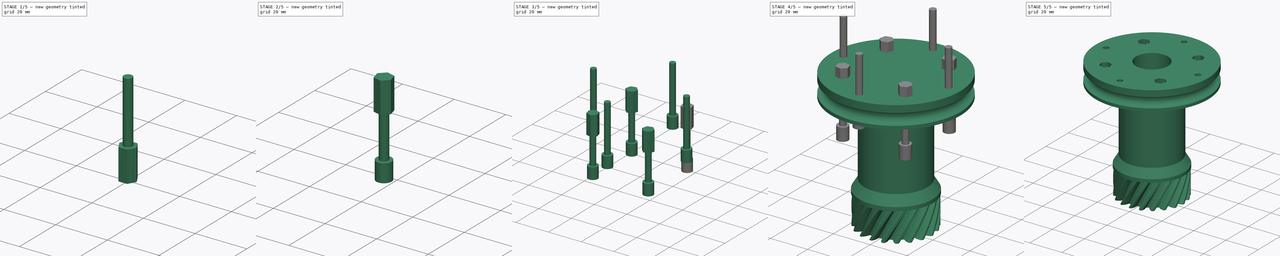
[diagram: build sequence overview — one tinted view per stage of 5, left to right]
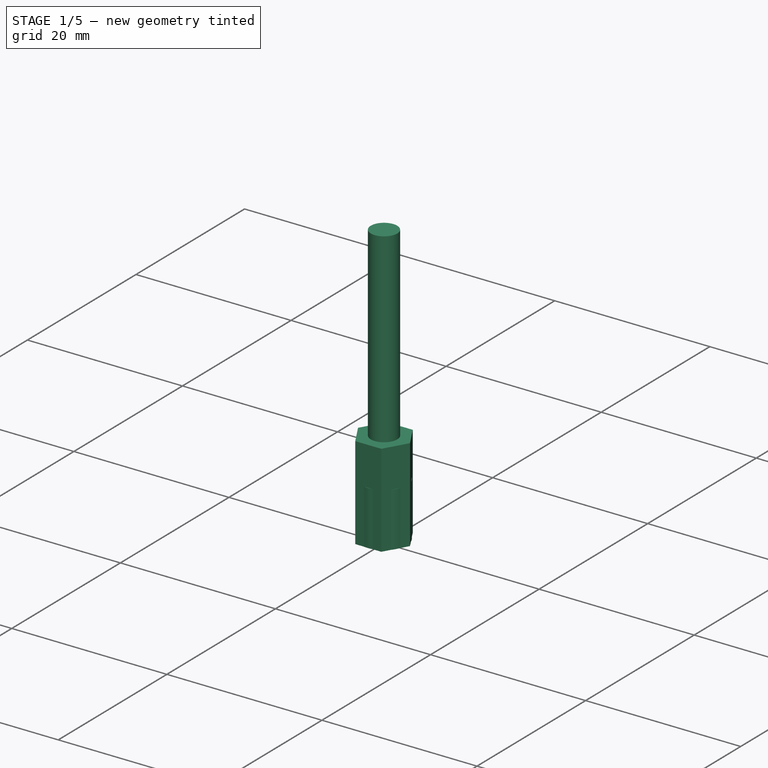
[diagram: stage 1 of 5 — iso view after this stage's code; geometry added in this stage tinted green]
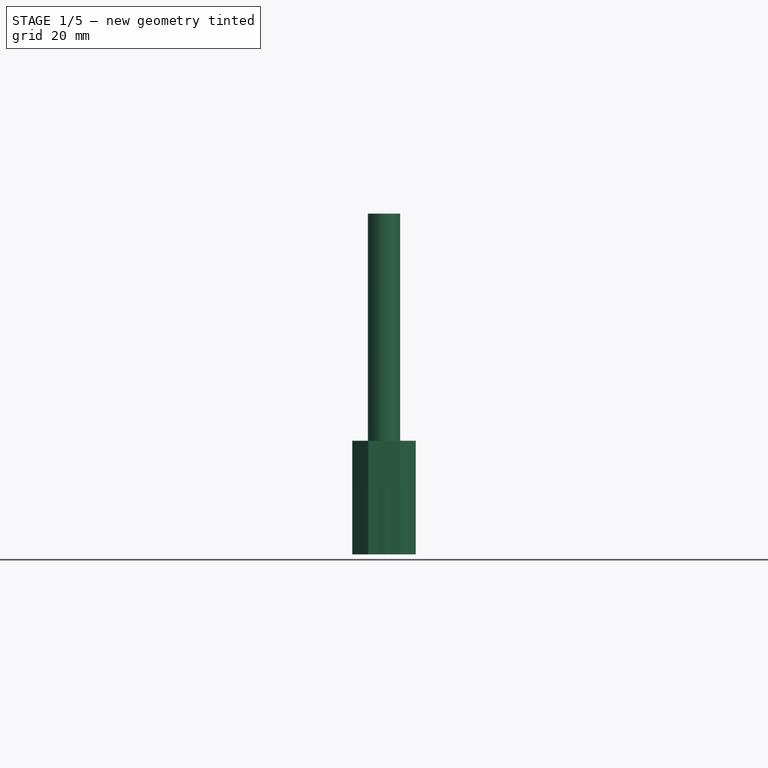
[diagram: stage 1 of 5 — front view after this stage's code; geometry added in this stage tinted green]
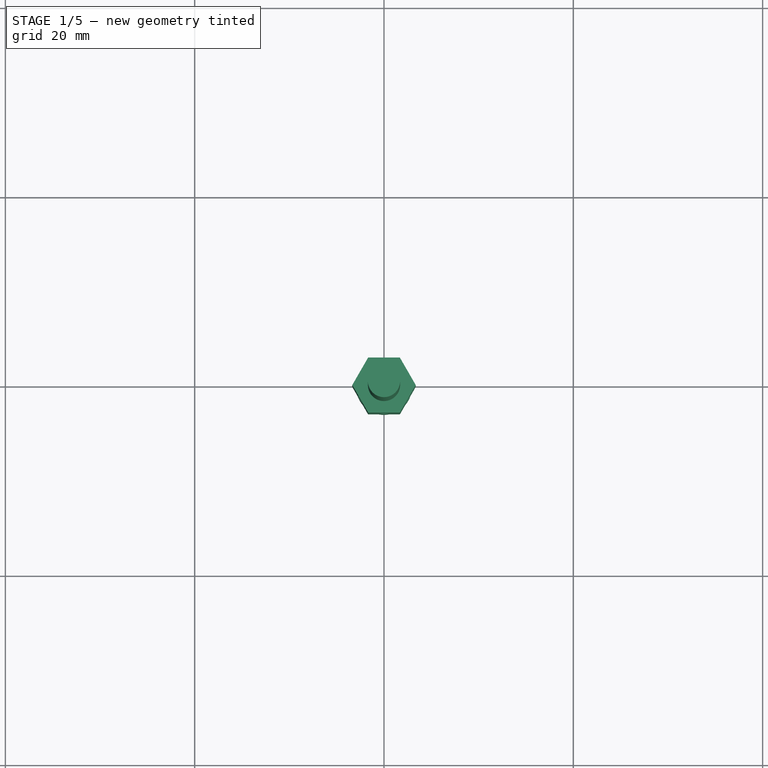
[diagram: stage 1 of 5 — top view after this stage's code; geometry added in this stage tinted green]
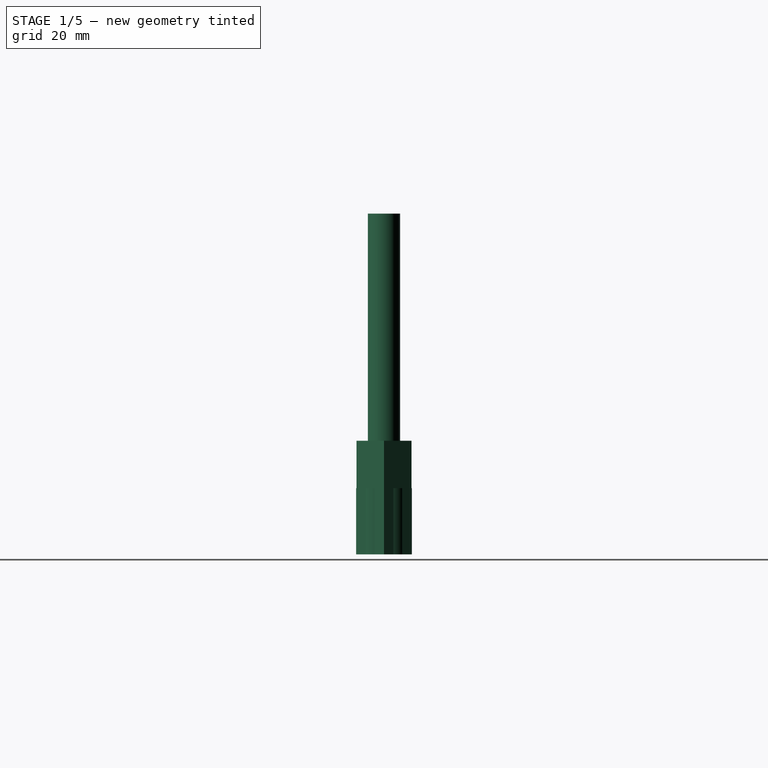
[diagram: stage 1 of 5 — right view after this stage's code; geometry added in this stage tinted green]
FCSTD DOCUMENT  (FreeCAD 0.16R6460 (Git))
Label: Art4TransmissionColumn
License: All rights reserved
LicenseURL: http://en.wikipedia.org/wiki/All_rights_reserved
objects: Part::FeaturePython×5, Part::MultiFuse×4, Part::Cylinder×3, Part::Cut×2, Part::Prism×1, Sketcher::SketchObject×1, PartDesign::Revolution×1, Part::Part2DObjectPython×1, Part::Helix×1, Part::Sweep×1, App::DocumentObjectGroup×1
note: 21 computed .brp shape members not serialized (recipe doc carries the construction recipe); baked Part::Feature solids carry a one-line shape summary decoded from their .brp

FEATURE [Part::Cylinder] Cylinder  label="M3BoltHead"
  Angle = 360
  Height = 7
  Radius = 2.95
FEATURE [Part::Cylinder] Cylinder001  label="M3BoltBody"
  Angle = 360
  Height = 30
  Placement = pos=(0,0,6) rot=(0,0,1;0rad)
  Radius = 1.7
FEATURE [Part::Prism] Prism  label="M3Nut"
  Circumradius = 3.35
  Height = 12
  Polygon = 6
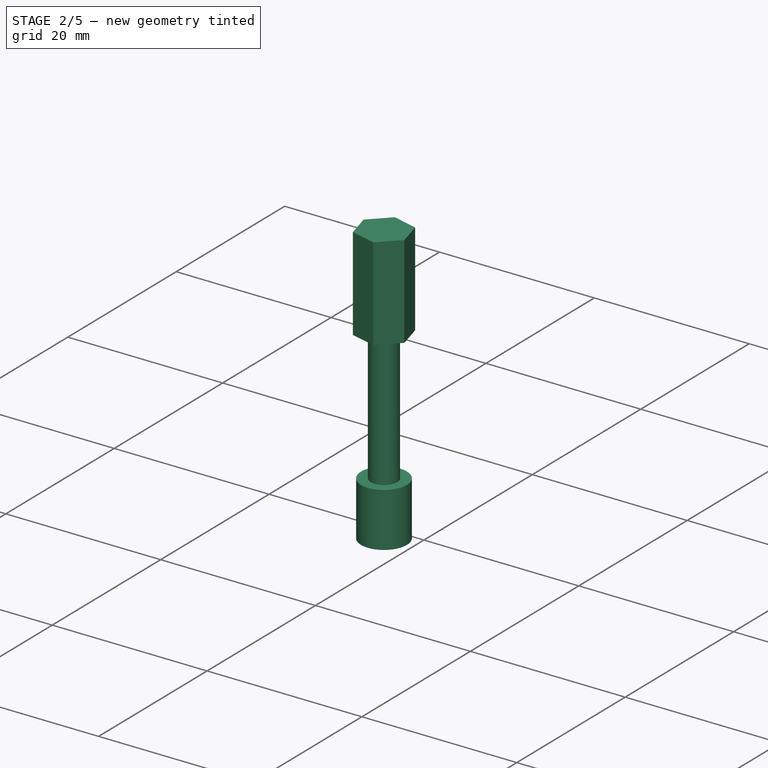
[diagram: stage 2 of 5 — iso view after this stage's code; geometry added in this stage tinted green]
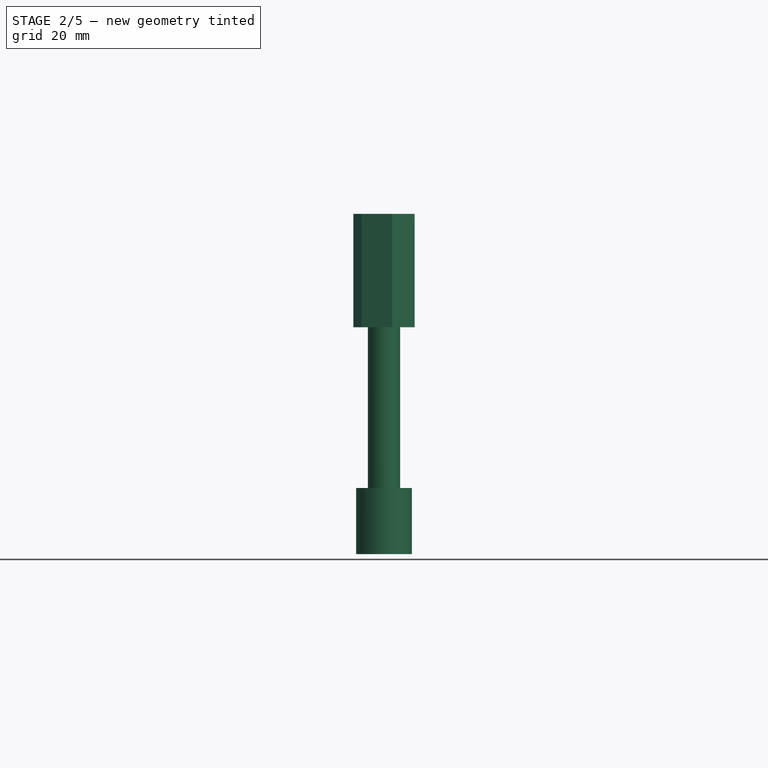
[diagram: stage 2 of 5 — front view after this stage's code; geometry added in this stage tinted green]
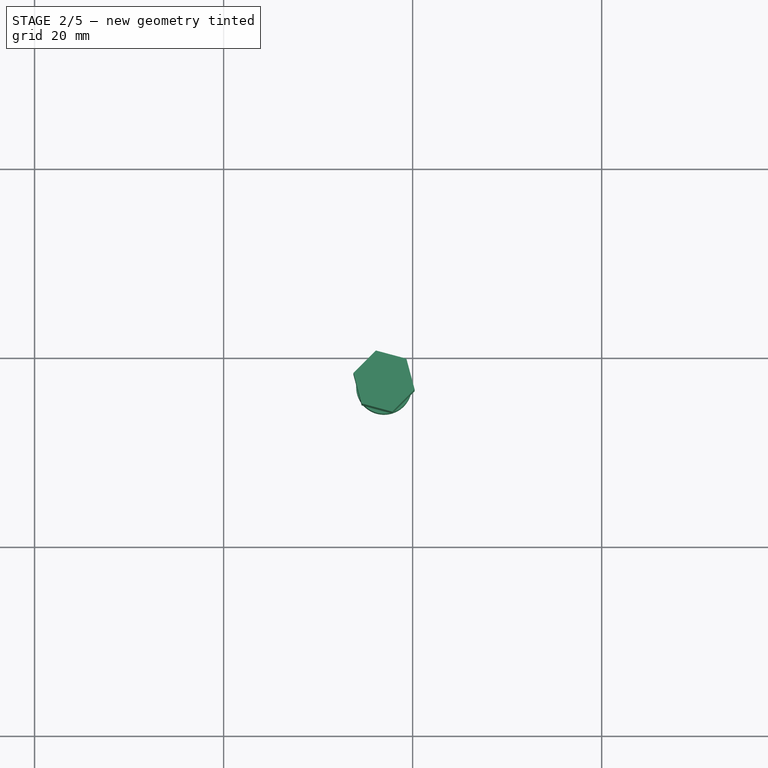
[diagram: stage 2 of 5 — top view after this stage's code; geometry added in this stage tinted green]
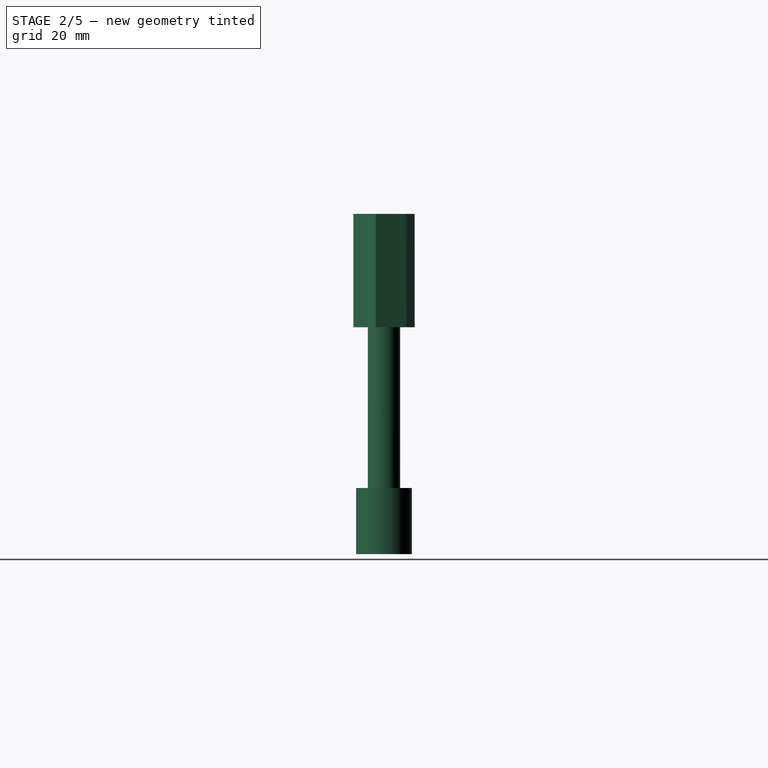
[diagram: stage 2 of 5 — right view after this stage's code; geometry added in this stage tinted green]
FEATURE [Part::MultiFuse] Fusion  label="M3Bolt"
  Shapes = -> [Cylinder001,Cylinder]
FEATURE [Part::FeaturePython] Clone361  label="Clone of M3Bolt121"  # Draft clone (typed FeaturePython)
  Objects = -> [Fusion]
  Placement = pos=(16.9706,16.9706,44) rot=(0,0,1;0.785398rad)
  Scale = (1,1,1)
FEATURE [Part::FeaturePython] Clone362  label="Clone of M3Nut019"  # Draft clone (typed FeaturePython)
  Objects = -> [Prism]
  Placement = pos=(16.9706,16.9706,68) rot=(0,0,1;0.785398rad)
  Scale = (1,1,1)
FEATURE [Part::MultiFuse] Fusion131
  Shapes = -> [Clone361,Clone362]
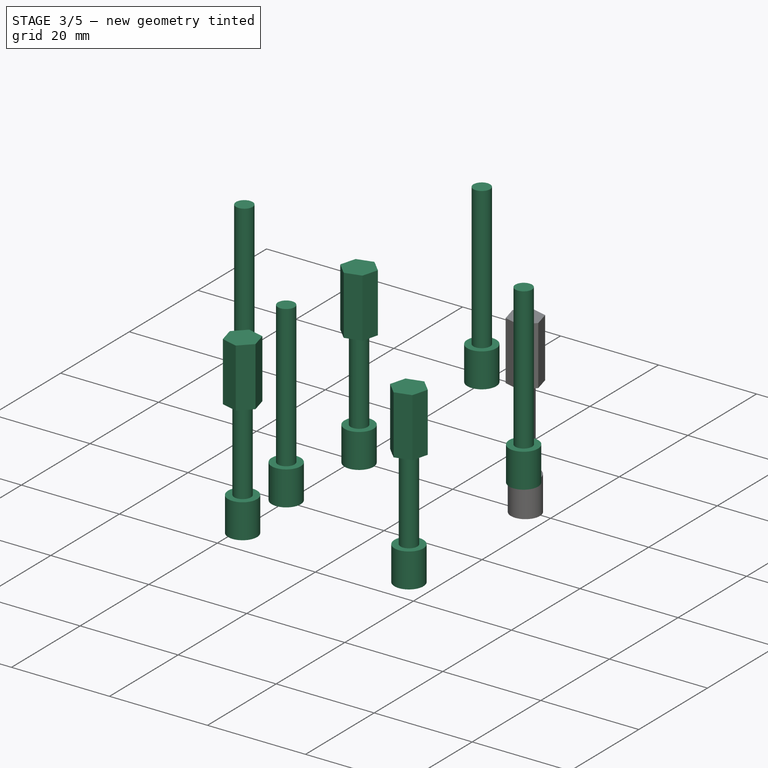
[diagram: stage 3 of 5 — iso view after this stage's code; geometry added in this stage tinted green]
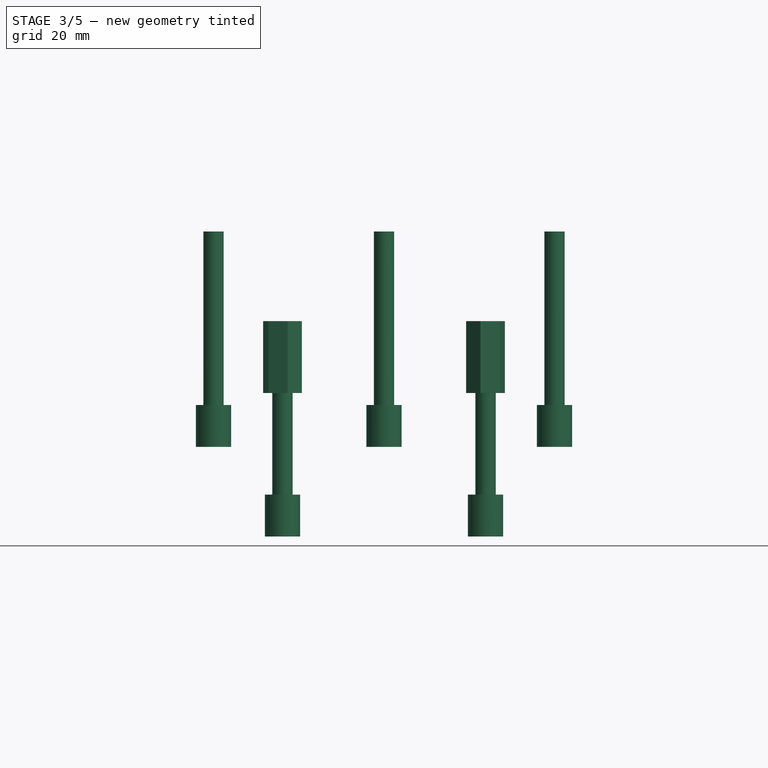
[diagram: stage 3 of 5 — front view after this stage's code; geometry added in this stage tinted green]
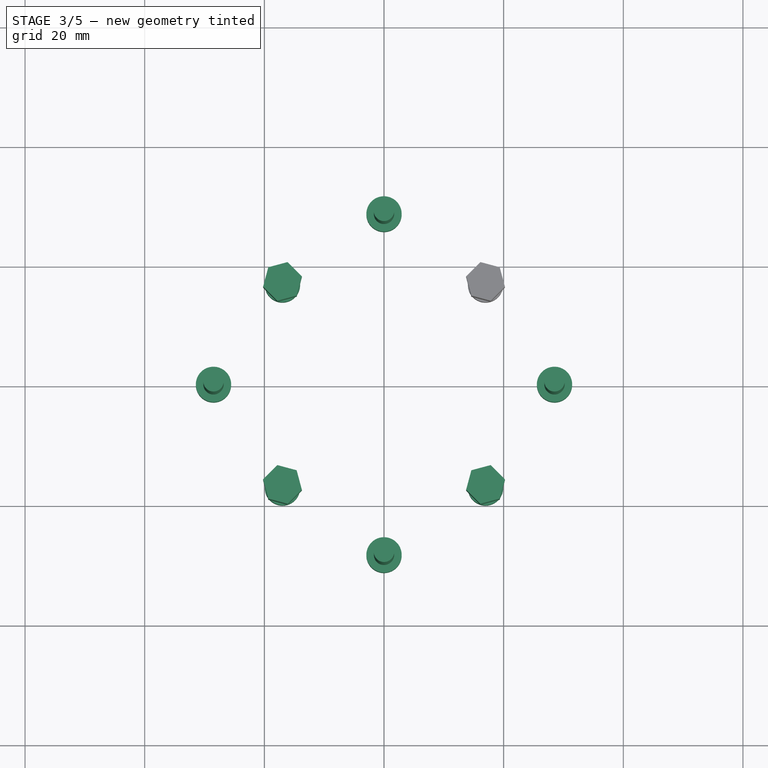
[diagram: stage 3 of 5 — top view after this stage's code; geometry added in this stage tinted green]
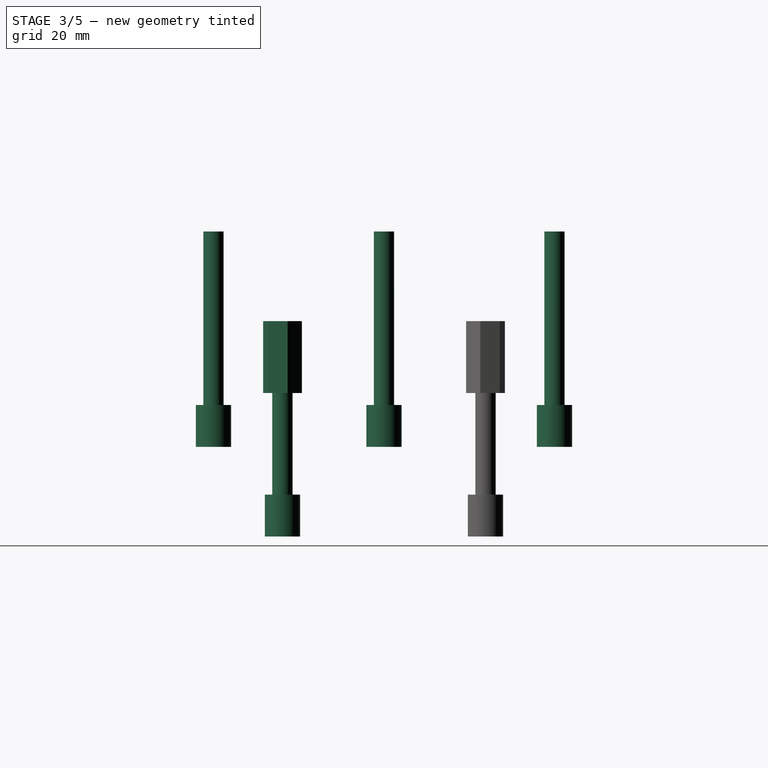
[diagram: stage 3 of 5 — right view after this stage's code; geometry added in this stage tinted green]
FEATURE [Part::FeaturePython] Clone251  label="Clone of M3Bolt084"  # Draft clone (typed FeaturePython)
  Objects = -> [Fusion]
  Placement = pos=(28.5,0,59) rot=(0,0,1;0rad)
  Scale = (1,1,1)
FEATURE [Part::FeaturePython] Array010  # Draft array (typed FeaturePython)
  Angle = 360
  ArrayType = 1
  Axis = (0,0,1)
  Base = -> Clone251
  Center = (0,0,0)
  Fuse = false
  IntervalAxis = (0,0,0)
  IntervalX = (1,0,0)
  IntervalY = (0,1,0)
  IntervalZ = (0,0,0)
  NumberPolar = 4
  NumberX = 2
  NumberY = 2
  NumberZ = 1
FEATURE [Part::FeaturePython] Array019  # Draft array (typed FeaturePython)
  Angle = 360
  ArrayType = 1
  Axis = (0,0,1)
  Base = -> Fusion131
  Center = (0,0,0)
  Fuse = false
  IntervalAxis = (0,0,0)
  IntervalX = (1,0,0)
  IntervalY = (0,1,0)
  IntervalZ = (0,0,0)
  NumberPolar = 4
  NumberX = 2
  NumberY = 2
  NumberZ = 1
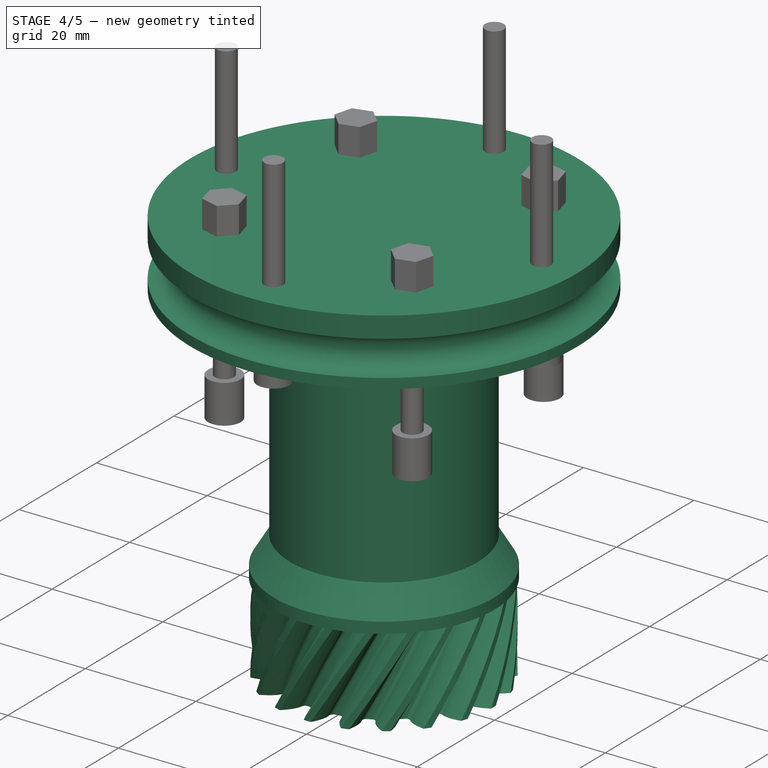
[diagram: stage 4 of 5 — iso view after this stage's code; geometry added in this stage tinted green]
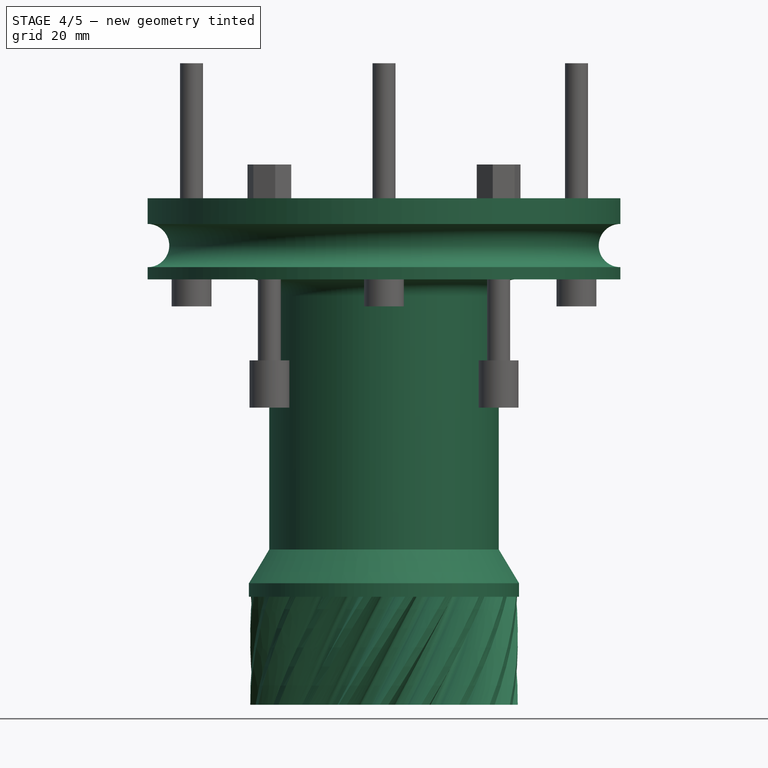
[diagram: stage 4 of 5 — front view after this stage's code; geometry added in this stage tinted green]
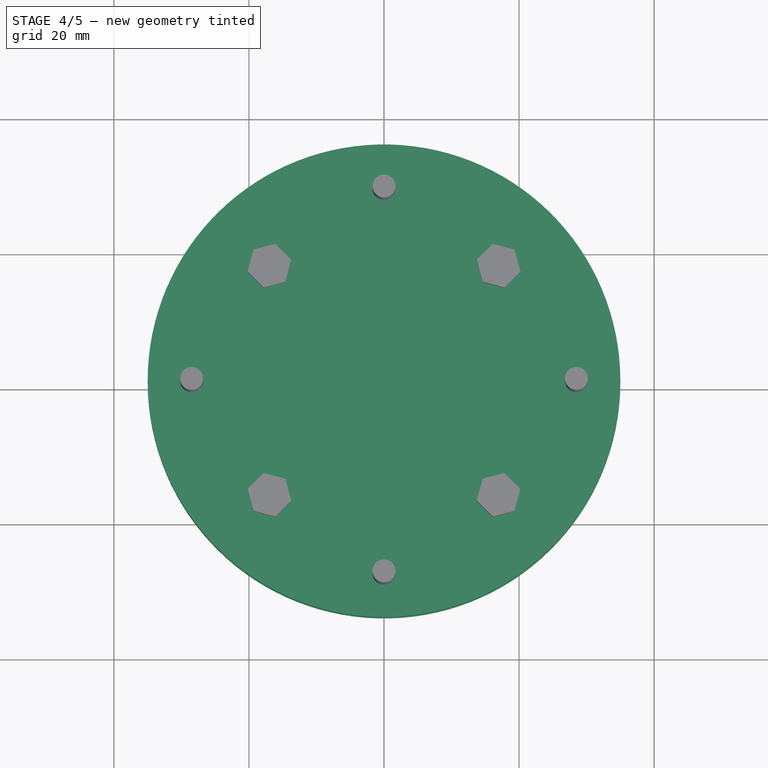
[diagram: stage 4 of 5 — top view after this stage's code; geometry added in this stage tinted green]
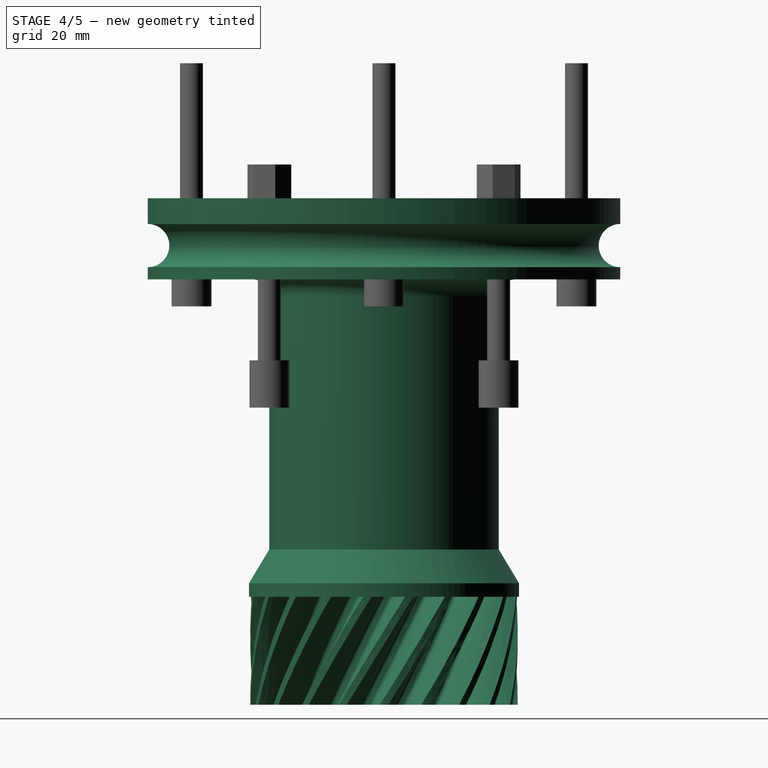
[diagram: stage 4 of 5 — right view after this stage's code; geometry added in this stage tinted green]
FEATURE [Sketcher::SketchObject] Sketch046
  Placement = pos=(0,0,16) rot=(1,0,0;1.5708rad)
  sketch-geometry (12):
    g0: LineSegment StartX=17 StartY=44.5 StartZ=0 EndX=17 EndY=7 EndZ=0
    g1: LineSegment StartX=17 StartY=7 StartZ=0 EndX=20 EndY=2 EndZ=0
    g2: LineSegment StartX=20 StartY=2 StartZ=0 EndX=20 EndY=0 EndZ=0
    g3: LineSegment StartX=20 StartY=0 StartZ=0 EndX=0 EndY=0 EndZ=0
    g4: LineSegment StartX=0 StartY=0 StartZ=0 EndX=0 EndY=59 EndZ=0
    g5: LineSegment StartX=0 StartY=59 StartZ=0 EndX=35 EndY=59 EndZ=0
    g6: LineSegment StartX=35 StartY=59 StartZ=0 EndX=35 EndY=55.2 EndZ=0
    g7: ArcOfCircle CenterX=19.5 CenterY=44.5 CenterZ=0 NormalX=0 NormalY=0 NormalZ=1 Radius=2.5 StartAngle=1.5708 EndAngle=3.14159
    g8: ArcOfCircle CenterX=35 CenterY=52 CenterZ=0 NormalX=0 NormalY=0 NormalZ=1 Radius=3.2 StartAngle=1.5708 EndAngle=4.71239
    g9: LineSegment StartX=19.5 StartY=47 StartZ=0 EndX=35 EndY=47 EndZ=0
    g10: LineSegment StartX=35 StartY=47 StartZ=0 EndX=35 EndY=48.8 EndZ=0
    g11: LineSegment [constr] StartX=35 StartY=55.2 StartZ=0 EndX=35 EndY=48.8 EndZ=0
  constraints (35):
    c: Vertical(g0)
    c: Coincident(g0,g1)
    c: Coincident(g1,g2)
    c: PointOnObject(g2,g-1)
    c: Coincident(g2,g3)
    c: Coincident(g3,g-1)
    c: Coincident(g3,g4)
    c: PointOnObject(g4,g-2)
    c: Coincident(g4,g5)
    c: Horizontal(g5)
    c: Coincident(g5,g6)
    c: Vertical(g6)
    c: Coincident(g7,g0)
    c: Coincident(g8,g6)
    c: Tangent(g7,g9) = 1.5708
    c: Coincident(g9,g10)
    c: Coincident(g10,g8)
    c: Vertical(g10)
    c: Horizontal(g9)
    c: DistanceY(g4) = 59
    c: Coincident(g11,g6)
    c: Coincident(g11,g8)
    c: Vertical(g11)
    c: PointOnObject(g8,g11)
    c: Radius(g8) = 3.2
    c: DistanceY(g9,g8) = 5
    c: DistanceY(g9,g5) = 12
    c: DistanceX(g3) = -20
    c: Vertical(g2)
    c: DistanceY(g2) = -2
    c: DistanceY(g1) = -5
    c: DistanceY(g0) = -37.5
    c: Tangent(g0,g7)
    c: DistanceX(g5) = 35
    c: DistanceX(g-1,g0) = 17
FEATURE [PartDesign::Revolution] Revolution008
  Angle = 360
  Axis = (0,0,1)
  Base = (0,0,16)
  Placement = pos=(0,0,16) rot=(1,0,0;1.5708rad)
  ReferenceAxis = -> Sketch046 [V_Axis]
  Reversed = true
  Sketch = -> Sketch046
FEATURE [Part::Part2DObjectPython] InvoluteGear005  # Draft 2D object (typed FeaturePython)
  ExternalGear = true
  HighPrecision = true
  Modules = 1.8
  NumberOfTeeth = 20
  PressureAngle = 20
FEATURE [Part::Cylinder] Cylinder1026  label="Cylinder1070"
  Angle = 360
  Height = 75
  Radius = 10
FEATURE [Part::MultiFuse] Fusion132
  Shapes = -> [Array010,Array019]
FEATURE [Part::Helix] Helix005  label="Art4TransmissionColumnHelix"
  Angle = 0
  Height = 17
  LocalCoord = 0
  Pitch = 200
  Radius = 1
  Style = 1
FEATURE [Part::Sweep] Sweep005
  Frenet = true
  Sections = -> [InvoluteGear005]
  Solid = true
  Spine = -> Helix005 [Edge1]
  Transition = 1
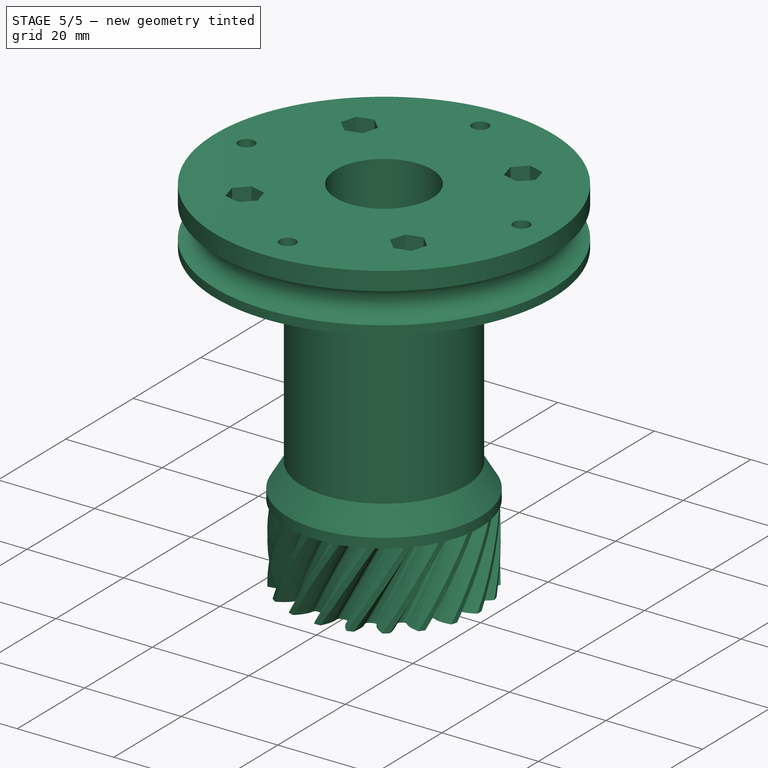
[diagram: stage 5 of 5 — iso view after this stage's code; geometry added in this stage tinted green]
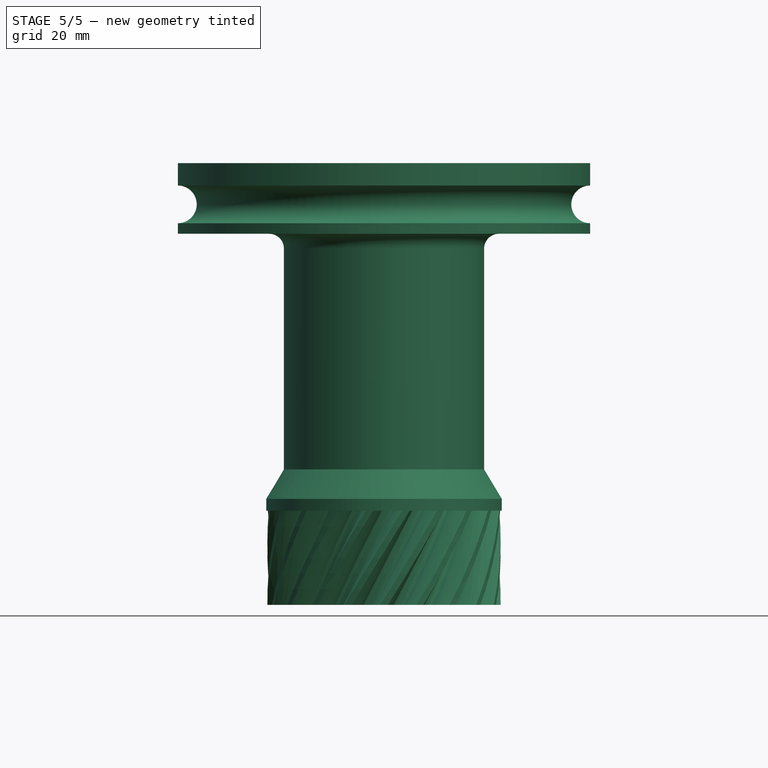
[diagram: stage 5 of 5 — front view after this stage's code; geometry added in this stage tinted green]
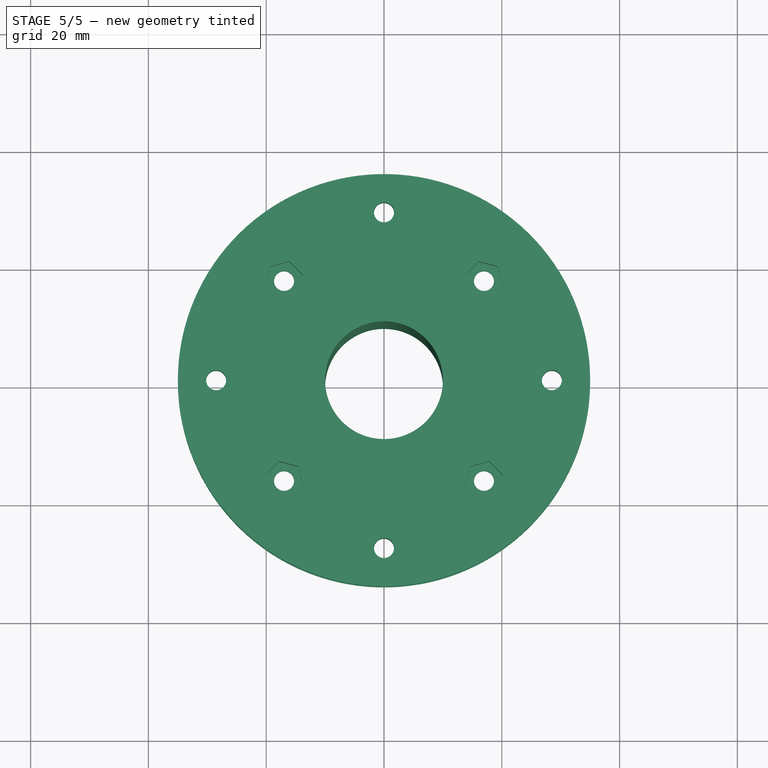
[diagram: stage 5 of 5 — top view after this stage's code; geometry added in this stage tinted green]
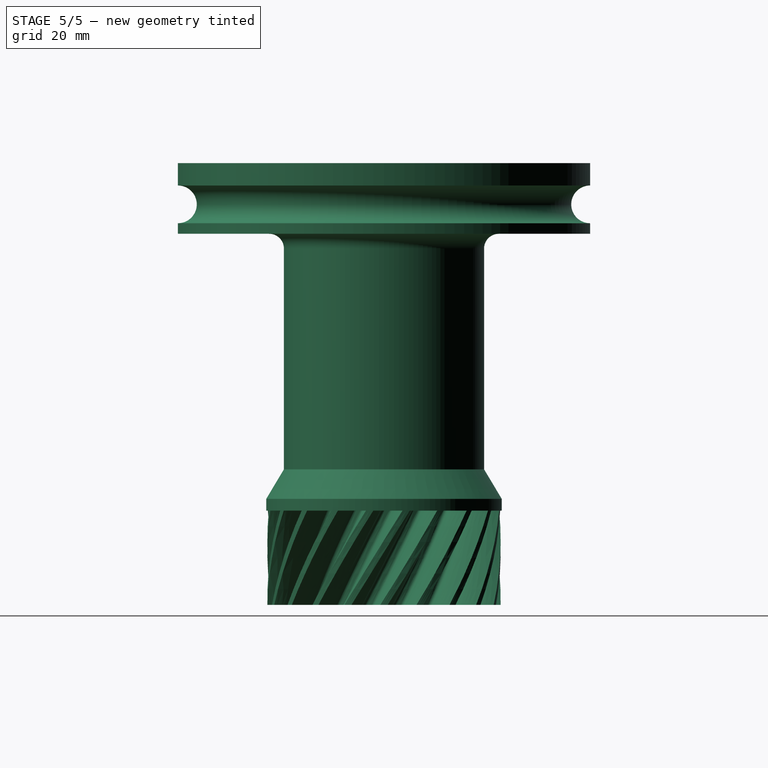
[diagram: stage 5 of 5 — right view after this stage's code; geometry added in this stage tinted green]
FEATURE [Part::MultiFuse] Fusion089
  Shapes = -> [Revolution008,Sweep005]
FEATURE [Part::Cut] Cut075
  Base = -> Fusion089
  Tool = -> Cylinder1026
FEATURE [Part::Cut] Cut116  label="Art4TransmissionColumn"
  Base = -> Cut075
  Tool = -> Fusion132
FEATURE [App::DocumentObjectGroup] Group  label="Master"
  Group = -> [Fusion,Prism,Helix005]
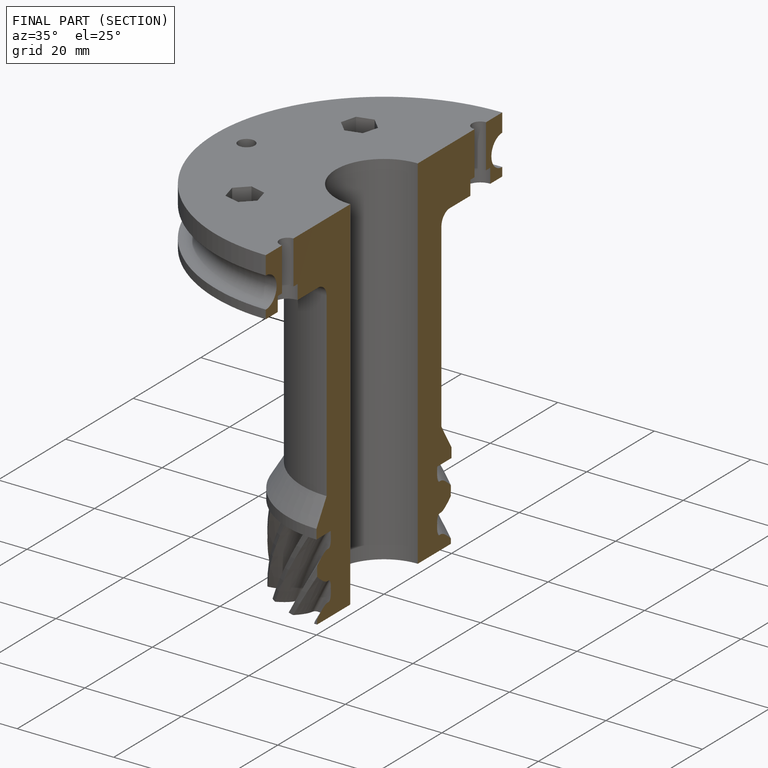
[diagram: finished part — half-section view (interior)]
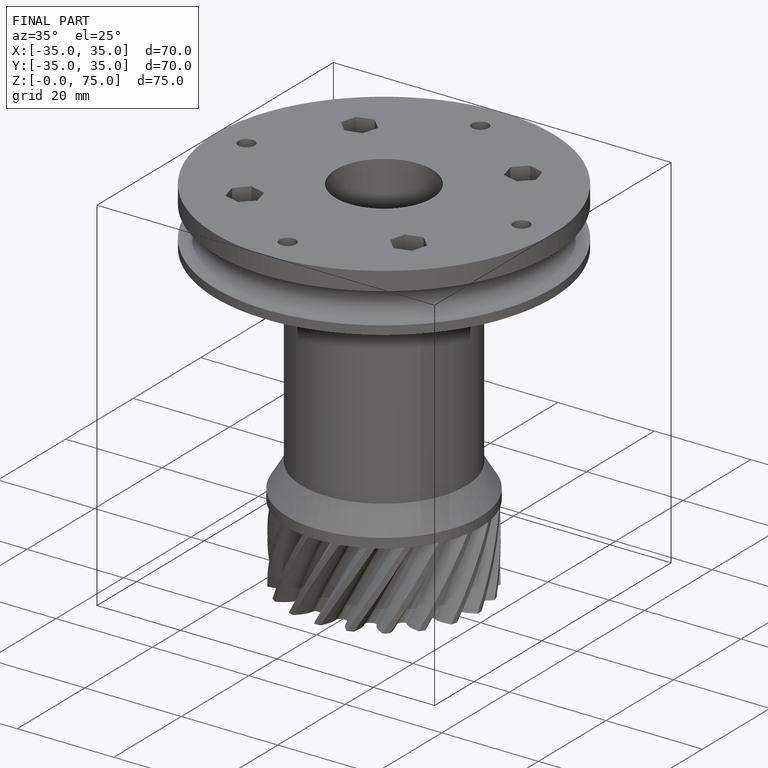
[diagram: finished part — iso view with bounding-box wireframe]
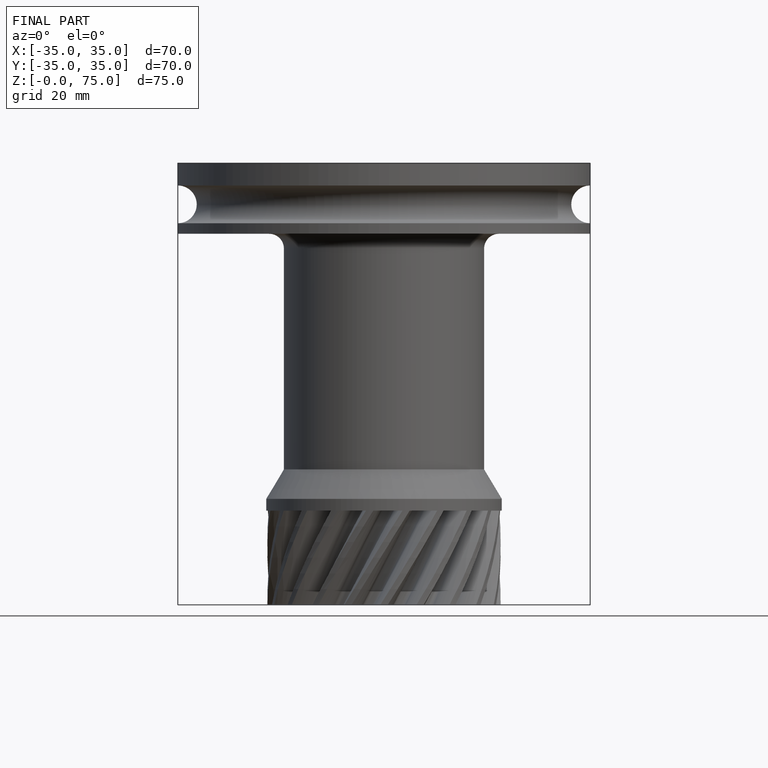
[diagram: finished part — front view with bounding-box wireframe]
